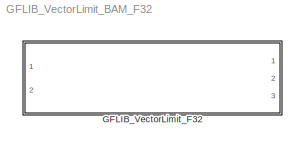
MODEL GFLIB_VectorLimit_BAM_F32
KIND model
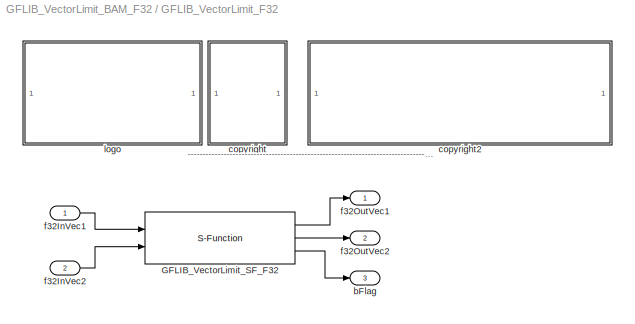
BLOCK [SubSystem] GFLIB_VectorLimit_F32
  Ports = [2, 3]
  RequestExecContextInheritance = off
  SID = 1
BLOCK [S-Function] GFLIB_VectorLimit_F32/GFLIB_VectorLimit_SF_F32
  EnableBusSupport = off
  FunctionName = GFLIB_VectorLimit_SF_F32
  Parameters = f32Limit
  Ports = [2, 3]
  SID = 4
BLOCK [Outport] GFLIB_VectorLimit_F32/bFlag
  IconDisplay = Port number
  Port = 3
  SID = 10
BLOCK [SubSystem] GFLIB_VectorLimit_F32/<copyright redacted>
  Ports = []
  RequestExecContextInheritance = off
  SID = 5
BLOCK [SubSystem] GFLIB_VectorLimit_F32/copyright2
  Ports = []
  RequestExecContextInheritance = off
  SID = 6
BLOCK [Inport] GFLIB_VectorLimit_F32/f32InVec1
  IconDisplay = Port number
  SID = 2
BLOCK [Inport] GFLIB_VectorLimit_F32/f32InVec2
  IconDisplay = Port number
  Port = 2
  SID = 3
BLOCK [Outport] GFLIB_VectorLimit_F32/f32OutVec1
  IconDisplay = Port number
  SID = 8
BLOCK [Outport] GFLIB_VectorLimit_F32/f32OutVec2
  IconDisplay = Port number
  Port = 2
  SID = 9
BLOCK [SubSystem] GFLIB_VectorLimit_F32/logo
  Ports = []
  RequestExecContextInheritance = off
  SID = 7
ANNOTATION GFLIB_VectorLimit_F32: ---------------------------------------------------------------------------------------------------------------------------------------------------------------------------------------------------
LINE GFLIB_VectorLimit_F32/GFLIB_VectorLimit_SF_F32:1 -> GFLIB_VectorLimit_F32/f32OutVec1:1
LINE GFLIB_VectorLimit_F32/GFLIB_VectorLimit_SF_F32:2 -> GFLIB_VectorLimit_F32/f32OutVec2:1
LINE GFLIB_VectorLimit_F32/GFLIB_VectorLimit_SF_F32:3 -> GFLIB_VectorLimit_F32/bFlag:1
LINE GFLIB_VectorLimit_F32/f32InVec1:1 -> GFLIB_VectorLimit_F32/GFLIB_VectorLimit_SF_F32:1
LINE GFLIB_VectorLimit_F32/f32InVec2:1 -> GFLIB_VectorLimit_F32/GFLIB_VectorLimit_SF_F32:2
